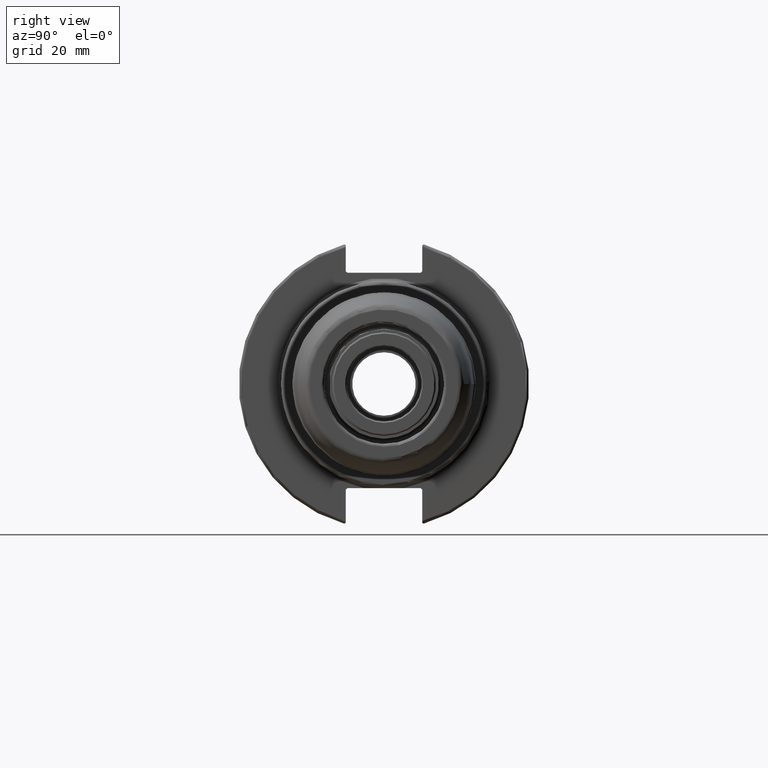
[diagram: clean part render]
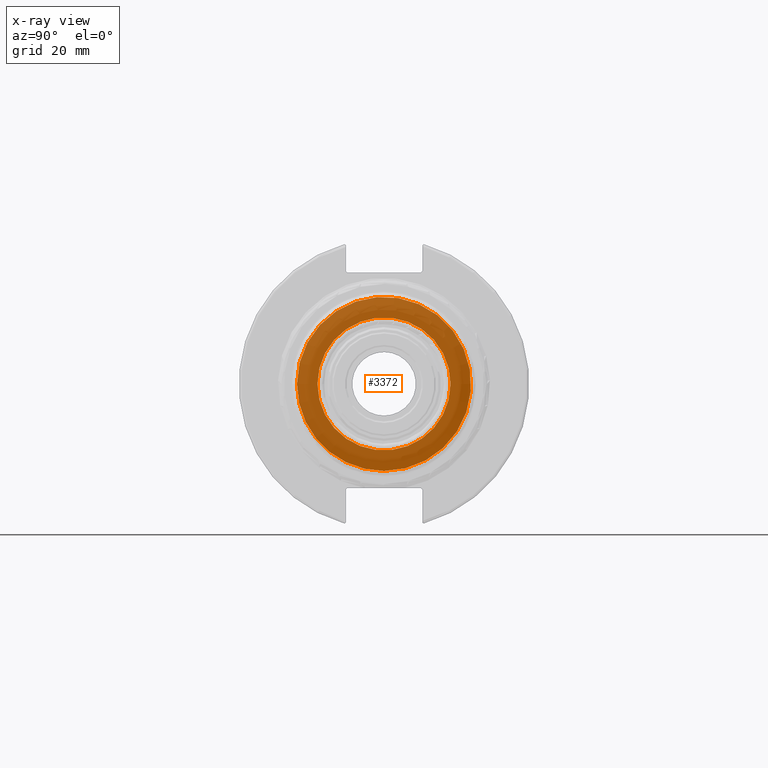
[diagram: x-ray — body ghosted, one internal face saturated and labeled with its STEP entity id]
A machine part, right view, then the same camera in x-ray: the body is ghosted and one INTERNAL B-rep face — a face not visible from any outside direction — is saturated and labeled: STEP entity #3372.
In plain terms, the highlighted planar face has unit normal (-1, 0, -0).
Its self-contained STEP definition (entity closure, byte-faithful):
#148=FACE_BOUND('',#653,.T.);
#230=PLANE('',#3761);
#457=FACE_OUTER_BOUND('',#652,.T.);
#652=EDGE_LOOP('',(#3043,#3044));
#653=EDGE_LOOP('',(#3045));
#1243=CIRCLE('',#3758,22.55);
#1246=CIRCLE('',#3762,29.5);
#1247=CIRCLE('',#3763,29.5);
#1593=VERTEX_POINT('',#6867);
#1596=VERTEX_POINT('',#6875);
#1597=VERTEX_POINT('',#6876);
#2087=EDGE_CURVE('',#1593,#1593,#1243,.T.);
#2091=EDGE_CURVE('',#1596,#1597,#1246,.T.);
#2092=EDGE_CURVE('',#1597,#1596,#1247,.T.);
#3043=ORIENTED_EDGE('',*,*,#2091,.F.);
#3044=ORIENTED_EDGE('',*,*,#2092,.F.);
#3045=ORIENTED_EDGE('',*,*,#2087,.F.);
#3372=ADVANCED_FACE('',(#457,#148),#230,.T.);
#3758=AXIS2_PLACEMENT_3D('',#6868,#4620,#4621);
#3761=AXIS2_PLACEMENT_3D('',#6874,#4627,#4628);
#3762=AXIS2_PLACEMENT_3D('',#6877,#4629,#4630);
#3763=AXIS2_PLACEMENT_3D('',#6878,#4631,#4632);
#4620=DIRECTION('center_axis',(-1.,0.,0.));
#4621=DIRECTION('ref_axis',(0.,-1.,0.));
#4627=DIRECTION('center_axis',(-1.,0.,0.));
#4628=DIRECTION('ref_axis',(0.,0.,1.));
#4629=DIRECTION('center_axis',(1.,0.,0.));
#4630=DIRECTION('ref_axis',(0.,-1.,1.83697019872103E-16));
#4631=DIRECTION('center_axis',(1.,0.,0.));
#4632=DIRECTION('ref_axis',(0.,-1.,1.83697019872103E-16));
#6867=CARTESIAN_POINT('',(0.,22.55,-2.76157853207728E-15));
#6868=CARTESIAN_POINT('Origin',(0.,0.,0.));
#6874=CARTESIAN_POINT('Origin',(0.,30.5,0.));
#6875=CARTESIAN_POINT('',(0.,29.5,-1.80635402874235E-15));
#6876=CARTESIAN_POINT('',(0.,-3.61270805748469E-15,29.5));
#6877=CARTESIAN_POINT('Origin',(0.,0.,0.));
#6878=CARTESIAN_POINT('Origin',(0.,0.,0.));